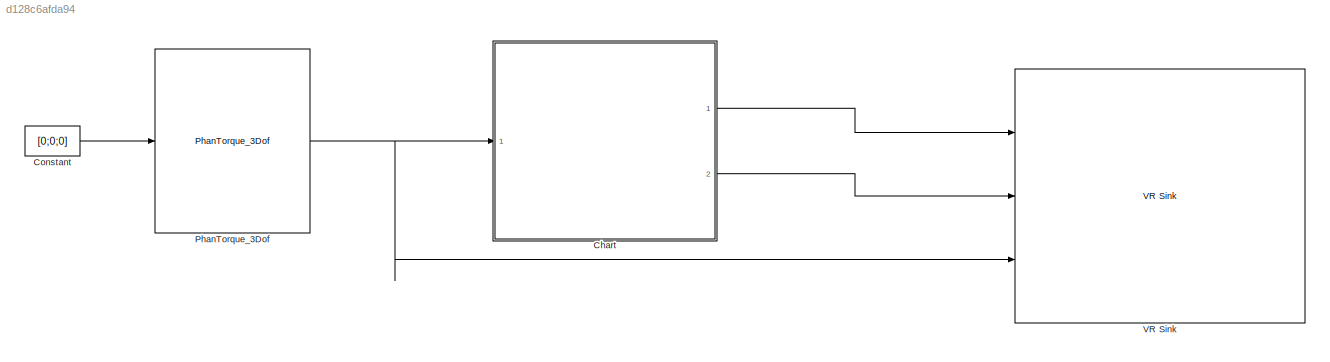
MODEL slx_d128c6afda94
KIND model
CONFIG AbsTol = auto
CONFIG EnableMultiTasking = off
CONFIG FixedStep = 0.001
CONFIG MaxStep = auto
CONFIG MinStep = auto
CONFIG RelTol = 1e-3
CONFIG SampleTimeConstraint = Unconstrained
CONFIG SolverName = FixedStepDiscrete
CONFIG StartTime = 0.0
CONFIG StopTime = inf
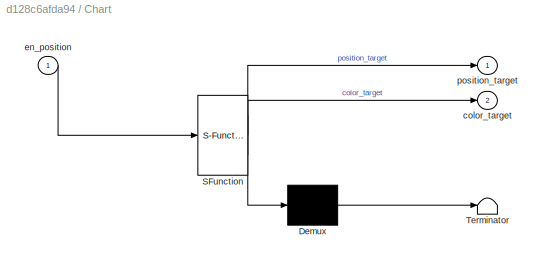
BLOCK [SubSystem] Chart
  ErrorFcn = Stateflow.Translate.translate
  PermitHierarchicalResolution = ExplicitOnly
  Ports = [1, 2]
  RequestExecContextInheritance = off
  SFBlockType = Chart
  TreatAsAtomicUnit = on
BLOCK [Demux] Chart/ Demux 
  Outputs = 1
  Ports = [1, 1]
BLOCK [S-Function] Chart/ SFunction 
  EnableBusSupport = on
  FunctionName = sf_sfun
  PortCounts = [1 3]
  Ports = [1, 3]
  SFcnIsStateOwnerBlock = off
  SFunctionDeploymentMode = off
  Tag = Stateflow S-Function 3
BLOCK [Terminator] Chart/ Terminator 
BLOCK [Outport] Chart/color_target
  Port = 2
BLOCK [Inport] Chart/en_position
BLOCK [Outport] Chart/position_target
BLOCK [Constant] Constant
  Value = [0;0;0]
BLOCK [Reference] PhanTorque_3Dof  REF=PhanTorque_3Dof_Library_64Bits/PhanTorque_3Dof
  Ports = [1, 3]
  SourceBlock = PhanTorque_3Dof_Library_64Bits/PhanTorque_3Dof
BLOCK [Reference] VR Sink  REF=vrlib/VR Sink
  InstantiateOnLoad = on
  Ports = [3]
  SourceBlock = vrlib/VR Sink
  SourceProductBaseCode = SL
  SourceType = Virtual Reality Sink
LINE Chart:1 -> VR Sink:1
LINE Chart:2 -> VR Sink:2
LINE Constant:1 -> PhanTorque_3Dof:1
NET PhanTorque_3Dof:2 -> Chart:1, VR Sink:3
note: NET lines group one-source signal fan-out (src -> all destinations, sorted); 1:1 wires keep LINE
CHART Chart states=7 transitions=10
  STATE_LABEL 'Inizializing\nentry:\nradious=0.1;\nthreshold=0.01;\ncolor_target=[1 0 0];\ncounter=1;\n'
  STATE_LABEL 'Inizializing2\nentry:\nangle=2*pi*rand;\n'
  STATE_LABEL 'Finish'
  STATE_LABEL 'New_target\nentry:\nposition_target=[radious*cos(angle); radious*sin(angle); 0]\nd1=(en_position(1,1)-position_target(1,1))^2+((en_position(2,1)-position_target(2,1))^2);\nd=sqrt(d1);\nduring:\nd1=(en_position(1,1)-position_target(1,1))^2+((en_position(2,1)-position_target(2,1))^2);\nd=sqrt(d1);\n%dx=en_position-position_target(1,1); %distance\n%dy=en_position-position_target(2,1);\n'
  STATE_LABEL 'changecolor1\ncolor_target=[0 0 1];\nduring:\nd1=(en_position(1,1)-position_target(1,1))^2+((en_position(2,1)-position_target(2,1))^2);\nd=sqrt(d1);\n'
  STATE_LABEL 'hometarget_on\nposition_target = [0; 0 ;0];\ncolor_target=[0 0 1];\nduring:\nd1=(en_position(1,1)-position_target(1,1))^2+((en_position(2,1)-position_target(2,1))^2);\nd=sqrt(d1);'
  STATE_LABEL 'changecolor2\ncolor_target=[1 0 1];\nduring:\nd1=(en_position(1,1)-position_target(1,1))^2+((en_position(2,1)-position_target(2,1))^2);\nd=sqrt(d1);'
CHART  states=0 transitions=0
